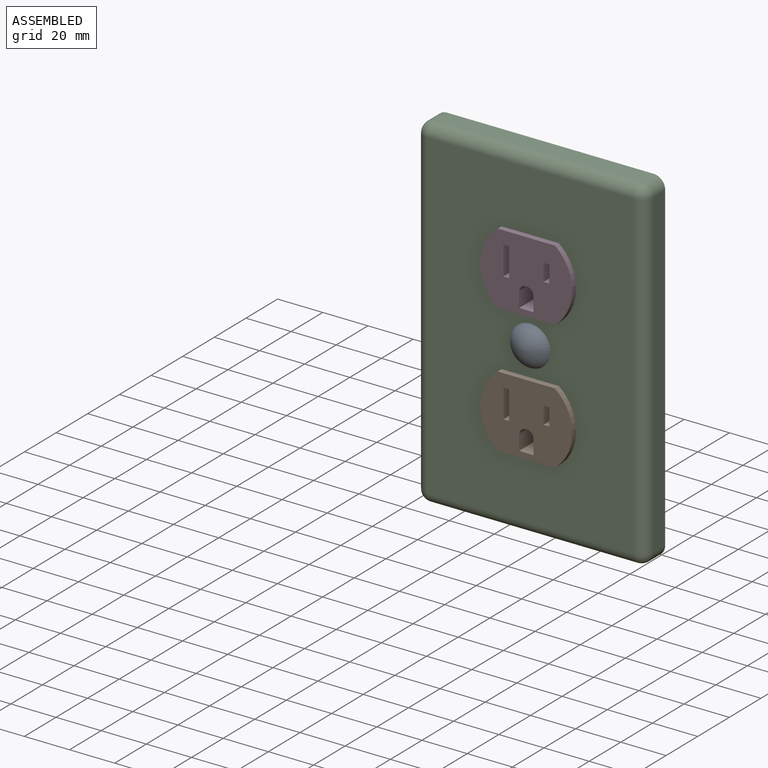
[diagram: assembled view]
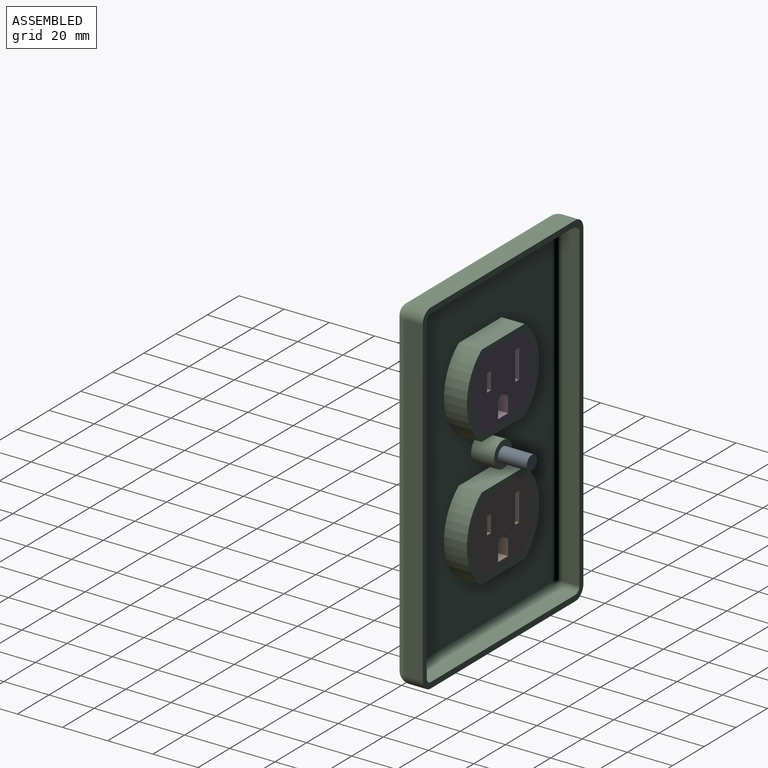
[diagram: assembled view, second angle]
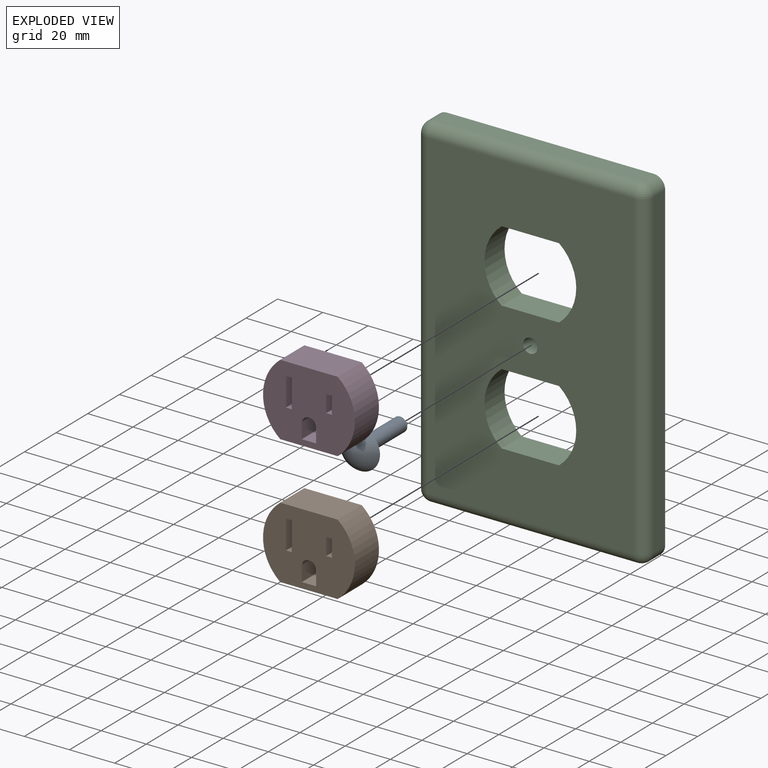
[diagram: exploded view]
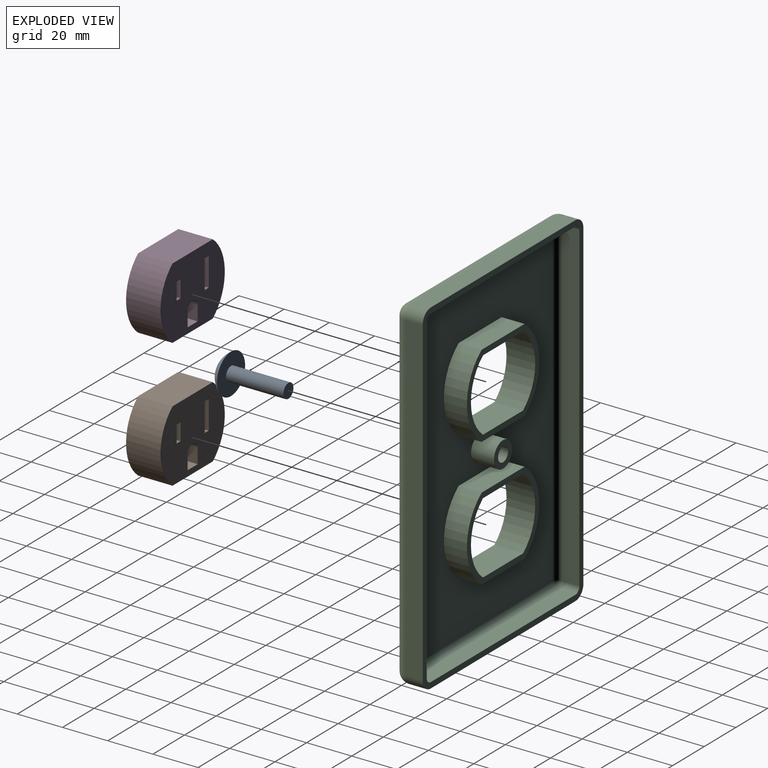
[diagram: exploded view, second angle]
ASSEMBLY  parts=4 mates=3
PART A: 4 faces, bbox 17.8x30.5x17.8 mm
  f0: cylinder r=3.17mm len=25.4mm, axis (0,1,0), area 506.7mm2, adj f1,f2
  f1: plane 6.35x6.35mm, normal (0,1,0), area 31.7mm2, adj f0
  f2: plane 17.78x17.78mm, normal (0,1,0), area 216.6mm2, adj f0,f3
  f3: revolved ~17.78x17.78mm, area 325.3mm2, adj f2
PART B: 18 faces, bbox 40.6x15.2x31.8 mm
  f0: plane 15.24x6.35mm, normal (0,0,1), area 96.8mm2, adj f1,f15,f16,f17
  f1: plane 15.24x6.35mm, normal (1,0,0), area 96.8mm2, adj f0,f2,f16,f17
  f2: cylinder r=3.17mm len=15.24mm, axis (0,1,0), area 152mm2, adj f1,f15,f16,f17
  f3: cylinder r=20.35mm len=31.75mm, axis (0,1,0), area 555.1mm2, adj f4,f12,f16,f17
  f4: plane 25.4x15.24mm, normal (0,0,1), area 387.1mm2, adj f3,f5,f16,f17
  f5: cylinder r=20.35mm len=31.75mm, axis (0,1,0), area 555.1mm2, adj f4,f12,f16,f17
  f6: plane 15.24x7.62mm, normal (-1,0,0), area 116.1mm2, adj f7,f13,f16,f17
  f7: plane 15.24x2.54mm, normal (0,0,1), area 38.7mm2, adj f6,f8,f16,f17
  f8: plane 15.24x7.62mm, normal (1,0,0), area 116.1mm2, adj f7,f13,f16,f17
  f9: plane 15.24x12.7mm, normal (-1,0,0), area 193.5mm2, adj f10,f14,f16,f17
  f10: plane 15.24x2.54mm, normal (0,0,1), area 38.7mm2, adj f9,f11,f16,f17
  f11: plane 15.24x12.7mm, normal (1,0,0), area 193.5mm2, adj f10,f14,f16,f17
  f12: plane 25.4x15.24mm, normal (0,0,-1), area 387.1mm2, adj f3,f5,f16,f17
  f13: plane 15.24x2.54mm, normal (0,0,-1), area 38.7mm2, adj f6,f8,f16,f17
  f14: plane 15.24x2.54mm, normal (0,0,-1), area 38.7mm2, adj f9,f11,f16,f17
  f15: plane 15.24x6.35mm, normal (-1,0,0), area 96.8mm2, adj f0,f2,f16,f17
  f16: plane 40.64x31.75mm, normal (0,-1,0), area 1035.7mm2, adj f0,f1,f2,f3,f4,f5,f6,f7
  f17: plane 40.64x31.75mm, normal (0,1,0), area 1035.7mm2, adj f0,f1,f2,f3,f4,f5,f6,f7
PART C: 56 faces, bbox 101.6x12.7x152.4 mm
  f0: plane 45.72x36.83mm, normal (0,1,0), area 334.6mm2, adj f9,f10,f11,f14,f36,f37,f38,f41
  f1: plane 45.72x36.83mm, normal (0,1,0), area 334.6mm2, adj f6,f7,f8,f13,f33,f34,f35,f40
  f2: plane 11.43x11.43mm, normal (0,1,0), area 70.9mm2, adj f12,f39
  f3: plane 91.44x7.62mm, normal (0,0,-1), area 696.8mm2, adj f17,f20,f26,f29
  f4: plane 142.24x7.62mm, normal (1,0,0), area 1083.9mm2, adj f17,f23,f27,f29
  f5: plane 91.44x7.62mm, normal (0,0,1), area 696.8mm2, adj f17,f18,f22,f23
  f6: plane 25.4x12.7mm, normal (0,0,1), area 322.6mm2, adj f1,f7,f13,f16
  f7: cylinder r=20.35mm len=31.75mm, axis (0,1,0), area 462.6mm2, adj f1,f6,f8,f16
  f8: plane 25.4x12.7mm, normal (0,0,-1), area 322.6mm2, adj f1,f7,f13,f16
  f9: plane 25.4x12.7mm, normal (0,0,-1), area 322.6mm2, adj f0,f10,f14,f16
  f10: cylinder r=20.35mm len=31.75mm, axis (0,1,0), area 462.6mm2, adj f0,f9,f11,f16
  f11: plane 25.4x12.7mm, normal (0,0,1), area 322.6mm2, adj f0,f10,f14,f16
  f12: cylinder r=3.17mm len=12.7mm, axis (0,1,0), area 253.4mm2, adj f2,f16
  f13: cylinder r=20.35mm len=31.75mm, axis (0,1,0), area 462.6mm2, adj f1,f6,f8,f16
  f14: cylinder r=20.35mm len=31.75mm, axis (0,1,0), area 462.6mm2, adj f0,f9,f11,f16
  f15: plane 142.24x7.62mm, normal (-1,0,0), area 1083.9mm2, adj f17,f18,f20,f21
  f16: plane 142.24x91.44mm, normal (0,-1,0), area 10687.9mm2, adj f6,f7,f8,f9,f10,f11,f12,f13
  f17: plane 152.4x101.6mm, normal (0,1,0), area 1247.9mm2, adj f3,f4,f5,f15,f18,f20,f23,f29
  f18: cylinder r=5.08mm len=7.62mm, axis (0,1,0), area 60.8mm2, adj f5,f15,f17,f19
  f19: sphere r=5.08mm, area 40.5mm2, adj f18,f21,f22
  f20: cylinder r=5.08mm len=7.62mm, axis (0,-1,0), area 60.8mm2, adj f3,f15,f17,f24
  f21: cylinder r=5.08mm len=142.24mm, axis (0,0,1), area 1135mm2, adj f15,f16,f19,f24
  f22: cylinder r=5.08mm len=91.44mm, axis (1,0,0), area 729.7mm2, adj f5,f16,f19,f25
  f23: cylinder r=5.08mm len=7.62mm, axis (0,-1,0), area 60.8mm2, adj f4,f5,f17,f25
  f24: sphere r=5.08mm, area 40.5mm2, adj f20,f21,f26
  f25: sphere r=5.08mm, area 40.5mm2, adj f22,f23,f27
  f26: cylinder r=5.08mm len=91.44mm, axis (-1,0,0), area 729.7mm2, adj f3,f16,f24,f28
  f27: cylinder r=5.08mm len=142.24mm, axis (0,0,-1), area 1135mm2, adj f4,f16,f25,f28
  f28: sphere r=5.08mm, area 40.5mm2, adj f26,f27,f29
  f29: cylinder r=5.08mm len=7.62mm, axis (0,1,0), area 60.8mm2, adj f3,f4,f17,f28
  f30: plane 91.44x7.62mm, normal (0,0,1), area 696.8mm2, adj f17,f46,f52,f55
  f31: plane 142.24x7.62mm, normal (-1,0,0), area 1083.9mm2, adj f17,f49,f53,f55
  f32: plane 91.44x7.62mm, normal (0,0,-1), area 696.8mm2, adj f17,f44,f48,f49
  f33: plane 27.13x10.16mm, normal (0,0,-1), area 275.6mm2, adj f1,f34,f40,f43
  f34: cylinder r=22.89mm len=36.83mm, axis (0,1,0), area 434.8mm2, adj f1,f33,f35,f43
  f35: plane 27.13x10.16mm, normal (0,0,1), area 275.6mm2, adj f1,f34,f40,f43
  f36: plane 27.13x10.16mm, normal (0,0,1), area 275.6mm2, adj f0,f37,f41,f43
  f37: cylinder r=22.89mm len=36.83mm, axis (0,1,0), area 434.8mm2, adj f0,f36,f38,f43
  f38: plane 27.13x10.16mm, normal (0,0,-1), area 275.6mm2, adj f0,f37,f41,f43
  f39: cylinder r=5.71mm len=11.43mm, axis (0,1,0), area 364.8mm2, adj f2,f43
  f40: cylinder r=22.89mm len=36.83mm, axis (0,1,0), area 434.8mm2, adj f1,f33,f35,f43
  f41: cylinder r=22.89mm len=36.83mm, axis (0,1,0), area 434.8mm2, adj f0,f36,f38,f43
  f42: plane 142.24x7.62mm, normal (1,0,0), area 1083.9mm2, adj f17,f44,f46,f47
  f43: plane 142.24x91.44mm, normal (0,1,0), area 9947.6mm2, adj f33,f34,f35,f36,f37,f38,f39,f40
  f44: cylinder r=2.54mm len=7.62mm, axis (0,1,0), area 30.4mm2, adj f17,f32,f42,f45
  f45: sphere r=2.54mm, area 10.1mm2, adj f44,f47,f48
  f46: cylinder r=2.54mm len=7.62mm, axis (0,-1,0), area 30.4mm2, adj f17,f30,f42,f50
  f47: cylinder r=2.54mm len=142.24mm, axis (0,0,1), area 567.5mm2, adj f42,f43,f45,f50
  f48: cylinder r=2.54mm len=91.44mm, axis (1,0,0), area 364.8mm2, adj f32,f43,f45,f51
  f49: cylinder r=2.54mm len=7.62mm, axis (0,-1,0), area 30.4mm2, adj f17,f31,f32,f51
  f50: sphere r=2.54mm, area 10.1mm2, adj f46,f47,f52
  f51: sphere r=2.54mm, area 10.1mm2, adj f48,f49,f53
  f52: cylinder r=2.54mm len=91.44mm, axis (-1,0,0), area 364.8mm2, adj f30,f43,f50,f54
  f53: cylinder r=2.54mm len=142.24mm, axis (0,0,-1), area 567.5mm2, adj f31,f43,f51,f54
  f54: sphere r=2.54mm, area 10.1mm2, adj f52,f53,f55
  f55: cylinder r=2.54mm len=7.62mm, axis (0,1,0), area 30.4mm2, adj f17,f30,f31,f54
PART D: same geometry as B
PLACE A t=(-4.75,6.35,-6.13)mm
PLACE B t=(-4.75,-6.35,-34.7)mm
PLACE C t=(-4.75,-6.35,-6.13)mm fixed
PLACE D t=(-4.75,-6.35,22.45)mm
MATE slider C.f12 <-> A.f0  axis (0,1,0) through (-4.75,-12.7,-6.13)mm
MATE fastened B.f17 <-> C.f0  axis (0,1,0) through (-4.75,-6.35,-18.83)mm
MATE fastened A.f0 <-> C.f12  axis (0,1,0) through (-4.75,-19.05,-6.13)mm
